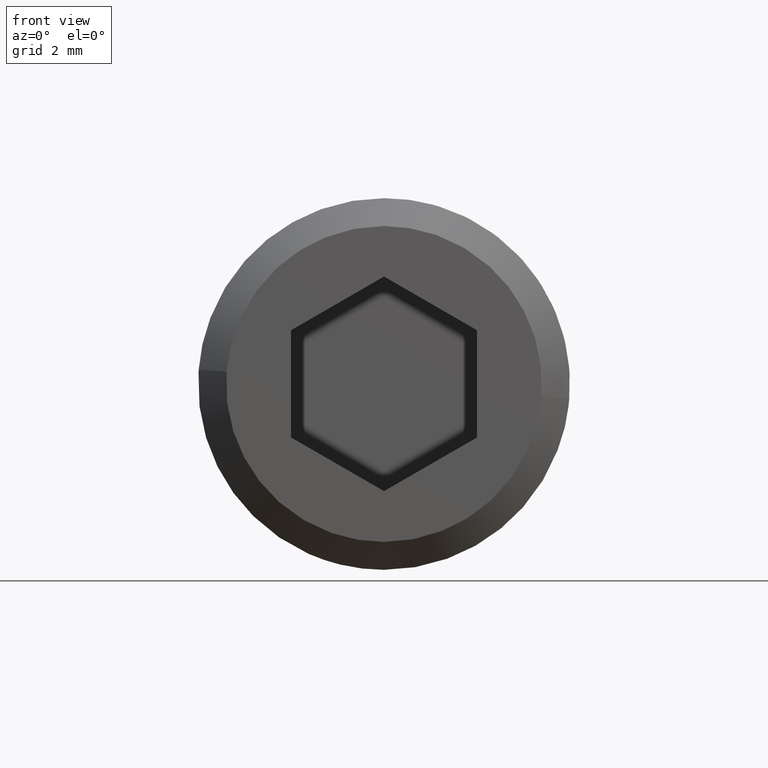
[diagram: clean part render]
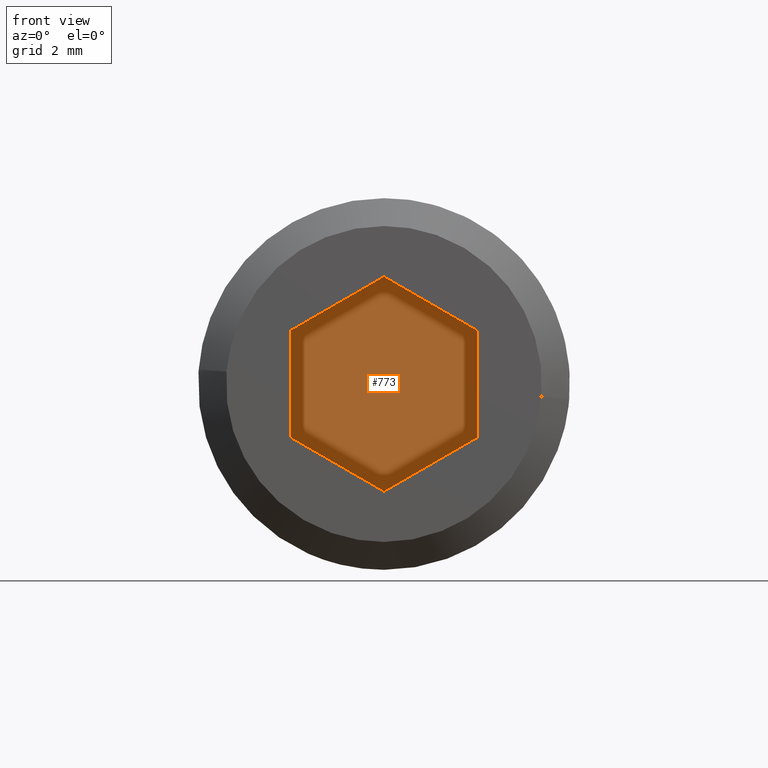
[diagram: same view with one face highlighted and labeled with its STEP entity id]
A machine part, front view. The second image highlights one B-rep face of the part: STEP entity #773.
In plain terms, the highlighted face is a freeform B-spline surface patch.
Its self-contained STEP definition (entity closure, byte-faithful):
#724=CARTESIAN_POINT('',(-2.749749990309030,-5.400000000000000,3.175137359512327));
#725=CARTESIAN_POINT('',(2.749750124419481,-5.400000000000000,3.175137359512327));
#726=CARTESIAN_POINT('',(-2.749749990309030,-5.400000000000000,-3.175137565988848));
#727=CARTESIAN_POINT('',(2.749750124419481,-5.400000000000000,-3.175137565988848));
#728=B_SPLINE_SURFACE_WITH_KNOTS('',1,1,((#724,#726),(#725,#727)),.UNSPECIFIED.,.F.,.F.,.U.,(2,2),(2,2),(0.0,5.499500114728511),(0.0,6.350274925501174),.UNSPECIFIED.);
#729=CARTESIAN_POINT('',(0.0,-5.400000000000000,2.886751000000000));
#730=VERTEX_POINT('',#729);
#731=CARTESIAN_POINT('',(-2.500000000000000,-5.400000000000000,1.443376000000000));
#732=VERTEX_POINT('',#731);
#733=CARTESIAN_POINT('',(0.0,-5.400000000000000,2.886751000000000));
#734=CARTESIAN_POINT('',(-2.500000000000000,-5.400000000000000,1.443376000000000));
#735=QUASI_UNIFORM_CURVE('',1,(#733,#734),.UNSPECIFIED.,.F.,.U.);
#736=EDGE_CURVE('',#730,#732,#735,.T.);
#737=ORIENTED_EDGE('',*,*,#736,.T.);
#738=CARTESIAN_POINT('',(-2.500000000000000,-5.400000000000000,-1.443376000000000));
#739=VERTEX_POINT('',#738);
#740=CARTESIAN_POINT('',(-2.500000000000000,-5.400000000000000,1.443376000000000));
#741=CARTESIAN_POINT('',(-2.500000000000000,-5.400000000000000,-1.443376000000000));
#742=QUASI_UNIFORM_CURVE('',1,(#740,#741),.UNSPECIFIED.,.F.,.U.);
#743=EDGE_CURVE('',#732,#739,#742,.T.);
#744=ORIENTED_EDGE('',*,*,#743,.T.);
#745=CARTESIAN_POINT('',(0.0,-5.400000000000000,-2.886751000000000));
#746=VERTEX_POINT('',#745);
#747=CARTESIAN_POINT('',(-2.500000000000000,-5.400000000000000,-1.443376000000000));
#748=CARTESIAN_POINT('',(0.0,-5.400000000000000,-2.886751000000000));
#749=QUASI_UNIFORM_CURVE('',1,(#747,#748),.UNSPECIFIED.,.F.,.U.);
#750=EDGE_CURVE('',#739,#746,#749,.T.);
#751=ORIENTED_EDGE('',*,*,#750,.T.);
#752=CARTESIAN_POINT('',(2.500000000000000,-5.400000000000000,-1.443376000000000));
#753=VERTEX_POINT('',#752);
#754=CARTESIAN_POINT('',(0.0,-5.400000000000000,-2.886751000000000));
#755=CARTESIAN_POINT('',(2.500000000000000,-5.400000000000000,-1.443376000000000));
#756=QUASI_UNIFORM_CURVE('',1,(#754,#755),.UNSPECIFIED.,.F.,.U.);
#757=EDGE_CURVE('',#746,#753,#756,.T.);
#758=ORIENTED_EDGE('',*,*,#757,.T.);
#759=CARTESIAN_POINT('',(2.500000000000000,-5.400000000000000,1.443376000000000));
#760=VERTEX_POINT('',#759);
#761=CARTESIAN_POINT('',(2.500000000000000,-5.400000000000000,-1.443376000000000));
#762=CARTESIAN_POINT('',(2.500000000000000,-5.400000000000000,1.443376000000000));
#763=QUASI_UNIFORM_CURVE('',1,(#761,#762),.UNSPECIFIED.,.F.,.U.);
#764=EDGE_CURVE('',#753,#760,#763,.T.);
#765=ORIENTED_EDGE('',*,*,#764,.T.);
#766=CARTESIAN_POINT('',(2.500000000000000,-5.400000000000000,1.443376000000000));
#767=CARTESIAN_POINT('',(0.0,-5.400000000000000,2.886751000000000));
#768=QUASI_UNIFORM_CURVE('',1,(#766,#767),.UNSPECIFIED.,.F.,.U.);
#769=EDGE_CURVE('',#760,#730,#768,.T.);
#770=ORIENTED_EDGE('',*,*,#769,.T.);
#771=EDGE_LOOP('',(#737,#744,#751,#758,#765,#770));
#772=FACE_OUTER_BOUND('',#771,.T.);
#773=ADVANCED_FACE('',(#772),#728,.F.);